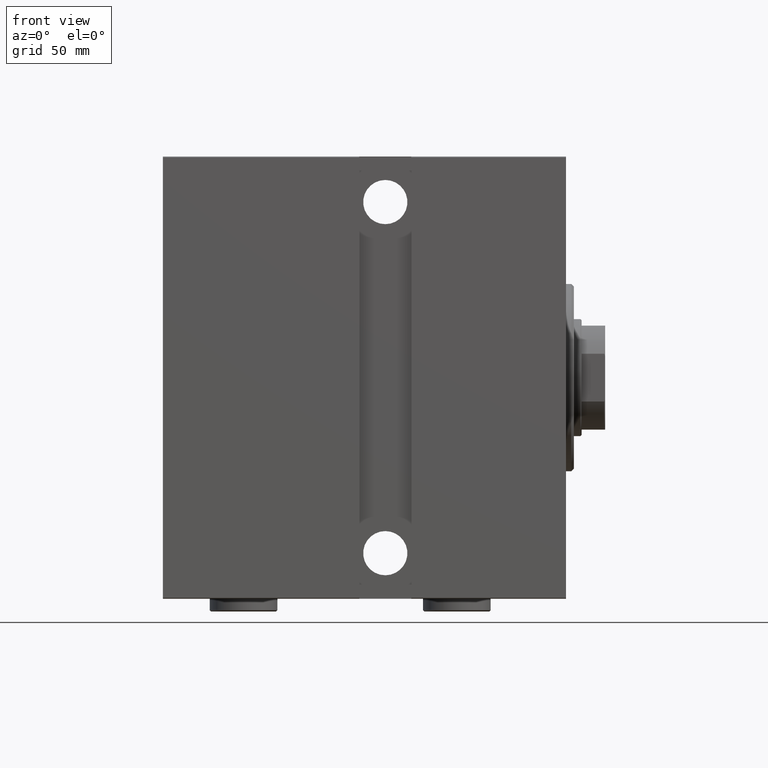
[diagram: clean part render]
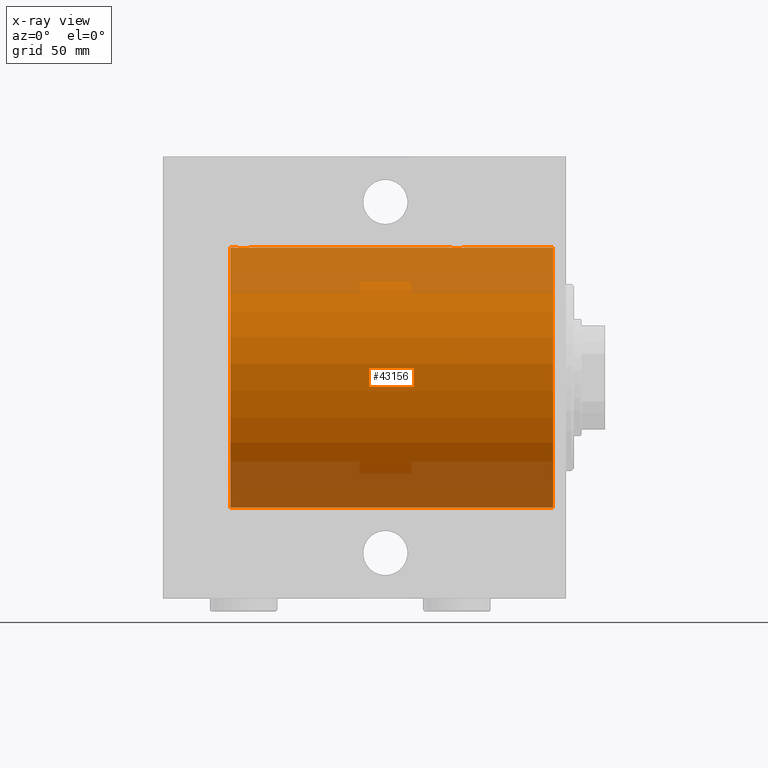
[diagram: x-ray — body ghosted, one internal face saturated and labeled with its STEP entity id]
A machine part, front view, then the same camera in x-ray: the body is ghosted and one INTERNAL B-rep face — a face not visible from any outside direction — is saturated and labeled: STEP entity #43156.
In plain terms, the highlighted cylindrical surface (partial cylindrical patch) has radius 50 mm, axis along (1, 0, -0).
Its self-contained STEP definition (entity closure, byte-faithful):
#77 = CARTESIAN_POINT ( 'NONE',  ( 125.3714460322090929, 4.032152715176913205, 49.83726562785246017 ) ) ;
#480 = DIRECTION ( 'NONE',  ( -1.000000000000000000, -0.000000000000000000, -0.000000000000000000 ) ) ;
#615 = B_SPLINE_CURVE_WITH_KNOTS ( 'NONE', 3,
 ( #23703, #37092, #30618, #19712, #13214, #37306, #26841, #6767, #43547, #20358, #33322, #23921, #16365, #77, #40847, #10302, #9305, #33830, #40072, #20232, #30268, #23361, #36967, #3076, #2639, #33619, #22921, #26492, #43179, #12859, #13307, #5980, #16225, #19803 ),
 .UNSPECIFIED., .F., .F.,
 ( 4, 2, 2, 2, 2, 2, 2, 2, 2, 2, 2, 2, 2, 2, 2, 2, 4 ),
 ( 3.802687406800181399E-18, 0.0008308394705804751862, 0.001661678941160946686, 0.002492518411741417861, 0.003323357882321889469, 0.004154197352902361078, 0.004985036823482831385, 0.005815876294063304294, 0.006646715764643776336, 0.007477555235224249246, 0.008308394705804722155, 0.009139234176385194197, 0.009970073646965664504, 0.01080091311754613655, 0.01163175258812660685, 0.01246259205870707890, 0.01329343152928754920 ),
 .UNSPECIFIED. ) ;
#746 = CARTESIAN_POINT ( 'NONE',  ( 37.75000000000000711, -2.480770331693776875E-23, 50.00000000000000000 ) ) ;
#1278 = EDGE_CURVE ( 'NONE', #13156, #32681, #30558, .T. ) ;
#1874 = CARTESIAN_POINT ( 'NONE',  ( 39.86883186234136645, 3.687449343139588720, 49.86408027804462506 ) ) ;
#2527 = CARTESIAN_POINT ( 'NONE',  ( 44.59471155064524339, 3.377583483857613089, 49.88603192934380104 ) ) ;
#2560 = DIRECTION ( 'NONE',  ( -1.000000000000000000, 0.000000000000000000, 0.000000000000000000 ) ) ;
#2608 = DIRECTION ( 'NONE',  ( 0.000000000000000000, 0.000000000000000000, 1.000000000000000000 ) ) ;
#2639 = CARTESIAN_POINT ( 'NONE',  ( 121.1937868506139182, 3.204122793140518066, 49.89762612798256214 ) ) ;
#3076 = CARTESIAN_POINT ( 'NONE',  ( 121.4084213949490731, 3.379775232620383818, 49.88587880363004956 ) ) ;
#3232 = DIRECTION ( 'NONE',  ( -1.000000000000000000, -0.000000000000000000, -0.000000000000000000 ) ) ;
#3325 = CARTESIAN_POINT ( 'NONE',  ( 129.0000000000000000, 0.000000000000000000, 50.00000000000000000 ) ) ;
#3652 = LINE ( 'NONE', #24164, #31855 ) ;
#5008 = CARTESIAN_POINT ( 'NONE',  ( 40.89727867996201383, 4.113850194901004897, 49.83050476025722020 ) ) ;
#5656 = CARTESIAN_POINT ( 'NONE',  ( 37.77780584836772704, 0.5592384970569924674, 49.99761483193761080 ) ) ;
#5869 = CARTESIAN_POINT ( 'NONE',  ( 45.20063781226177468, 2.809844036175775273, 49.92137121633495411 ) ) ;
#5980 = CARTESIAN_POINT ( 'NONE',  ( 119.7778058483677057, 0.5592384970569901359, 49.99761483193760370 ) ) ;
#6153 = ORIENTED_EDGE ( 'NONE', *, *, #27136, .T. ) ;
#6351 = CIRCLE ( 'NONE', #42632, 50.00000000000000000 ) ;
#6364 = CARTESIAN_POINT ( 'NONE',  ( 128.2499999999999716, 3.913250439338632581E-15, 50.00000000000000000 ) ) ;
#6380 = AXIS2_PLACEMENT_3D ( 'NONE', #32450, #2560, #23290 ) ;
#6551 = CARTESIAN_POINT ( 'NONE',  ( 5.000000000000004441, 6.123233995736766085E-15, -50.00000000000000000 ) ) ;
#6767 = CARTESIAN_POINT ( 'NONE',  ( 127.3801048630076309, 2.591239970584156893, 49.93334495304385712 ) ) ;
#8271 = VECTOR ( 'NONE', #31912, 1000.000000000000000 ) ;
#8347 = CARTESIAN_POINT ( 'NONE',  ( 37.96690704685525475, 1.369053668635229704, 49.98191709664470750 ) ) ;
#8478 = DIRECTION ( 'NONE',  ( -1.000000000000000000, 0.000000000000000000, 0.000000000000000000 ) ) ;
#8980 = CARTESIAN_POINT ( 'NONE',  ( 46.24999999999999289, 0.2809437491437558609, 50.00000000000000711 ) ) ;
#9305 = CARTESIAN_POINT ( 'NONE',  ( 124.2788714507149450, 4.249899732140173469, 49.81905611587623639 ) ) ;
#10302 = CARTESIAN_POINT ( 'NONE',  ( 124.5547403769281090, 4.222915468341948753, 49.82138079020266730 ) ) ;
#11156 = LINE ( 'NONE', #31464, #8271 ) ;
#11672 = CARTESIAN_POINT ( 'NONE',  ( 41.72419313215250014, 4.250099715408711454, 49.81903905555740408 ) ) ;
#11883 = CARTESIAN_POINT ( 'NONE',  ( 46.03257388568555086, 1.370567417712646119, 49.98187507657573292 ) ) ;
#12088 = CARTESIAN_POINT ( 'NONE',  ( 37.88652769648385288, 1.104090919659207914, 49.98855088738324071 ) ) ;
#12305 = CARTESIAN_POINT ( 'NONE',  ( 38.18018918912861892, 1.883929957684041812, 49.96515938649660171 ) ) ;
#12345 = CARTESIAN_POINT ( 'NONE',  ( 129.0000000000000000, 6.123233995736766085E-15, -50.00000000000000000 ) ) ;
#12630 = VERTEX_POINT ( 'NONE', #746 ) ;
#12859 = CARTESIAN_POINT ( 'NONE',  ( 119.9669070468552405, 1.369053668635230370, 49.98191709664470750 ) ) ;
#13156 = VERTEX_POINT ( 'NONE', #3325 ) ;
#13214 = CARTESIAN_POINT ( 'NONE',  ( 128.0325738856855082, 1.370567417712642122, 49.98187507657574713 ) ) ;
#13307 = CARTESIAN_POINT ( 'NONE',  ( 119.8865276964838529, 1.104090919659205250, 49.98855088738324071 ) ) ;
#15077 = EDGE_CURVE ( 'NONE', #12630, #23342, #28998, .T. ) ;
#15456 = CARTESIAN_POINT ( 'NONE',  ( 42.55474037692811606, 4.222915468341956746, 49.82138079020266019 ) ) ;
#16225 = CARTESIAN_POINT ( 'NONE',  ( 119.7499999999999858, 0.2774387832574399249, 49.99999999999998579 ) ) ;
#16365 = CARTESIAN_POINT ( 'NONE',  ( 125.8828700758230212, 3.820198949706802960, 49.85396053238191172 ) ) ;
#18453 = EDGE_CURVE ( 'NONE', #39790, #27788, #11156, .T. ) ;
#18725 = CARTESIAN_POINT ( 'NONE',  ( 5.000000000000004441, 0.000000000000000000, 0.000000000000000000 ) ) ;
#18813 = CARTESIAN_POINT ( 'NONE',  ( 42.27887145071498054, 4.249899732140181463, 49.81905611587624350 ) ) ;
#19025 = CARTESIAN_POINT ( 'NONE',  ( 43.37144603220910000, 4.032152715176926527, 49.83726562785245306 ) ) ;
#19712 = CARTESIAN_POINT ( 'NONE',  ( 128.1143643294342382, 1.100566060006320956, 49.98862465889504136 ) ) ;
#19803 = CARTESIAN_POINT ( 'NONE',  ( 119.7500000000000000, -2.480336458195905319E-23, 50.00000000000000000 ) ) ;
#20182 = DIRECTION ( 'NONE',  ( 0.000000000000000000, 0.000000000000000000, 1.000000000000000000 ) ) ;
#20232 = CARTESIAN_POINT ( 'NONE',  ( 122.8972786799620138, 4.113850194900997792, 49.83050476025721309 ) ) ;
#20358 = CARTESIAN_POINT ( 'NONE',  ( 126.8086300572496299, 3.201703158387168457, 49.89777173894965046 ) ) ;
#20613 = CYLINDRICAL_SURFACE ( 'NONE', #23402, 50.00000000000000000 ) ;
#20996 = VERTEX_POINT ( 'NONE', #6364 ) ;
#21943 = CARTESIAN_POINT ( 'NONE',  ( 45.81916120116850522, 1.885236035486732353, 49.96510958966688065 ) ) ;
#22152 = CARTESIAN_POINT ( 'NONE',  ( 46.25000000000000000, 3.663389736015513070E-16, 50.00000000000000000 ) ) ;
#22593 = CARTESIAN_POINT ( 'NONE',  ( 38.79689007339680984, 2.807369215369739379, 49.92152015083319583 ) ) ;
#22817 = CARTESIAN_POINT ( 'NONE',  ( 46.22241690005311909, 0.5571669497596906107, 49.99763400332482632 ) ) ;
#22921 = CARTESIAN_POINT ( 'NONE',  ( 120.6210426914386034, 2.592639214541030412, 49.93326838038161242 ) ) ;
#23271 = VECTOR ( 'NONE', #480, 1000.000000000000000 ) ;
#23290 = DIRECTION ( 'NONE',  ( 0.000000000000000000, 0.000000000000000000, 1.000000000000000000 ) ) ;
#23342 = VERTEX_POINT ( 'NONE', #36022 ) ;
#23361 = CARTESIAN_POINT ( 'NONE',  ( 122.1175560640430007, 3.820534283589329227, 49.85393595968220382 ) ) ;
#23402 = AXIS2_PLACEMENT_3D ( 'NONE', #34434, #3232, #20182 ) ;
#23703 = CARTESIAN_POINT ( 'NONE',  ( 128.2499999999999716, 3.913250439338632581E-15, 50.00000000000000000 ) ) ;
#23884 = CARTESIAN_POINT ( 'NONE',  ( 129.0000000000000000, 0.000000000000000000, 50.00000000000000000 ) ) ;
#23921 = CARTESIAN_POINT ( 'NONE',  ( 126.1300936179966214, 3.688265093516099657, 49.86402463145034858 ) ) ;
#24164 = CARTESIAN_POINT ( 'NONE',  ( 129.0000000000000000, 6.123233995736766085E-15, -50.00000000000000000 ) ) ;
#24616 = DIRECTION ( 'NONE',  ( -1.000000000000000000, -0.000000000000000000, -0.000000000000000000 ) ) ;
#24805 = LINE ( 'NONE', #23884, #23271 ) ;
#25014 = EDGE_CURVE ( 'NONE', #32681, #31897, #3652, .T. ) ;
#25307 = CARTESIAN_POINT ( 'NONE',  ( 41.44247689697309056, 4.222431257622151435, 49.82142152089561904 ) ) ;
#25524 = CARTESIAN_POINT ( 'NONE',  ( 44.80863005724962989, 3.201703158387179116, 49.89777173894965756 ) ) ;
#25667 = DIRECTION ( 'NONE',  ( -1.000000000000000000, -0.000000000000000000, -0.000000000000000000 ) ) ;
#25726 = CARTESIAN_POINT ( 'NONE',  ( 37.75000000000002132, 0.2774387832574390922, 50.00000000000001421 ) ) ;
#25942 = CARTESIAN_POINT ( 'NONE',  ( 39.19378685061396084, 3.204122793140522507, 49.89762612798256214 ) ) ;
#26160 = CARTESIAN_POINT ( 'NONE',  ( 43.10346211278672257, 4.113772393339279354, 49.83051149236716526 ) ) ;
#26492 = CARTESIAN_POINT ( 'NONE',  ( 120.3132776566072693, 2.132418568805243719, 49.95503838744804881 ) ) ;
#26841 = CARTESIAN_POINT ( 'NONE',  ( 127.6885838399500983, 2.129315083715782375, 49.95517470752237443 ) ) ;
#26885 = ORIENTED_EDGE ( 'NONE', *, *, #34515, .T. ) ;
#27083 = FACE_OUTER_BOUND ( 'NONE', #29303, .T. ) ;
#27136 = EDGE_CURVE ( 'NONE', #27788, #12630, #43376, .T. ) ;
#27788 = VERTEX_POINT ( 'NONE', #28432 ) ;
#28432 = CARTESIAN_POINT ( 'NONE',  ( 46.25000000000000000, 3.663389736015513070E-16, 50.00000000000000000 ) ) ;
#28640 = CARTESIAN_POINT ( 'NONE',  ( 44.13009361799668540, 3.688265093516102766, 49.86402463145035568 ) ) ;
#28998 = LINE ( 'NONE', #42584, #37312 ) ;
#29070 = CARTESIAN_POINT ( 'NONE',  ( 39.40842139494905894, 3.379775232620389147, 49.88587880363004956 ) ) ;
#29303 = EDGE_LOOP ( 'NONE', ( #33900, #34446, #26885, #40872, #42838, #6153, #29632, #31029 ) ) ;
#29632 = ORIENTED_EDGE ( 'NONE', *, *, #15077, .T. ) ;
#30268 = CARTESIAN_POINT ( 'NONE',  ( 122.6322789095959394, 4.033536463572221287, 49.83715477915254155 ) ) ;
#30558 = CIRCLE ( 'NONE', #6380, 50.00000000000000000 ) ;
#30618 = CARTESIAN_POINT ( 'NONE',  ( 128.2224169000531049, 0.5571669497596892784, 49.99763400332482632 ) ) ;
#31029 = ORIENTED_EDGE ( 'NONE', *, *, #39927, .T. ) ;
#31464 = CARTESIAN_POINT ( 'NONE',  ( 129.0000000000000000, 0.000000000000000000, 50.00000000000000000 ) ) ;
#31855 = VECTOR ( 'NONE', #24616, 1000.000000000000000 ) ;
#31897 = VERTEX_POINT ( 'NONE', #6551 ) ;
#31912 = DIRECTION ( 'NONE',  ( -1.000000000000000000, -0.000000000000000000, -0.000000000000000000 ) ) ;
#32417 = CARTESIAN_POINT ( 'NONE',  ( 40.63227890959592514, 4.033536463572223951, 49.83715477915254155 ) ) ;
#32450 = CARTESIAN_POINT ( 'NONE',  ( 129.0000000000000000, 0.000000000000000000, 0.000000000000000000 ) ) ;
#32681 = VERTEX_POINT ( 'NONE', #12345 ) ;
#33322 = CARTESIAN_POINT ( 'NONE',  ( 126.5947115506452292, 3.377583483857613533, 49.88603192934380104 ) ) ;
#33619 = CARTESIAN_POINT ( 'NONE',  ( 120.7968900733967814, 2.807369215369734494, 49.92152015083319583 ) ) ;
#33830 = CARTESIAN_POINT ( 'NONE',  ( 123.7241931321524930, 4.250099715408703460, 49.81903905555740408 ) ) ;
#33900 = ORIENTED_EDGE ( 'NONE', *, *, #25014, .F. ) ;
#33904 = CARTESIAN_POINT ( 'NONE',  ( 119.7500000000000000, -2.480336458195905319E-23, 50.00000000000000000 ) ) ;
#34434 = CARTESIAN_POINT ( 'NONE',  ( 129.0000000000000000, 0.000000000000000000, 0.000000000000000000 ) ) ;
#34446 = ORIENTED_EDGE ( 'NONE', *, *, #1278, .F. ) ;
#34515 = EDGE_CURVE ( 'NONE', #13156, #20996, #24805, .T. ) ;
#35754 = CARTESIAN_POINT ( 'NONE',  ( 45.38010486300764512, 2.591239970584167107, 49.93334495304385712 ) ) ;
#36022 = CARTESIAN_POINT ( 'NONE',  ( 5.000000000000004441, 0.000000000000000000, 50.00000000000000000 ) ) ;
#36194 = CARTESIAN_POINT ( 'NONE',  ( 45.68858383995015515, 2.129315083715793477, 49.95517470752238864 ) ) ;
#36967 = CARTESIAN_POINT ( 'NONE',  ( 121.8688318623413664, 3.687449343139583835, 49.86408027804463217 ) ) ;
#37092 = CARTESIAN_POINT ( 'NONE',  ( 128.2500000000000000, 0.2809437491437550838, 50.00000000000002132 ) ) ;
#37306 = CARTESIAN_POINT ( 'NONE',  ( 127.8191612011684839, 1.885236035486727912, 49.96510958966689486 ) ) ;
#37312 = VECTOR ( 'NONE', #25667, 1000.000000000000000 ) ;
#38877 = CARTESIAN_POINT ( 'NONE',  ( 38.31327765660727636, 2.132418568805245940, 49.95503838744803460 ) ) ;
#39303 = CARTESIAN_POINT ( 'NONE',  ( 37.75000000000000711, -2.480770331693776875E-23, 50.00000000000000000 ) ) ;
#39513 = CARTESIAN_POINT ( 'NONE',  ( 38.62104269143859625, 2.592639214541033965, 49.93326838038159821 ) ) ;
#39790 = VERTEX_POINT ( 'NONE', #33904 ) ;
#39927 = EDGE_CURVE ( 'NONE', #23342, #31897, #6351, .T. ) ;
#40072 = CARTESIAN_POINT ( 'NONE',  ( 123.4424768969730764, 4.222431257622142553, 49.82142152089561904 ) ) ;
#40847 = CARTESIAN_POINT ( 'NONE',  ( 125.1034621127866728, 4.113772393339271360, 49.83051149236715816 ) ) ;
#40872 = ORIENTED_EDGE ( 'NONE', *, *, #42715, .T. ) ;
#42219 = CARTESIAN_POINT ( 'NONE',  ( 43.88287007582302834, 3.820198949706817171, 49.85396053238191172 ) ) ;
#42584 = CARTESIAN_POINT ( 'NONE',  ( 129.0000000000000000, 0.000000000000000000, 50.00000000000000000 ) ) ;
#42632 = AXIS2_PLACEMENT_3D ( 'NONE', #18725, #8478, #2608 ) ;
#42715 = EDGE_CURVE ( 'NONE', #20996, #39790, #615, .T. ) ;
#42838 = ORIENTED_EDGE ( 'NONE', *, *, #18453, .T. ) ;
#42854 = CARTESIAN_POINT ( 'NONE',  ( 40.11755606404297936, 3.820534283589331004, 49.85393595968220382 ) ) ;
#43076 = CARTESIAN_POINT ( 'NONE',  ( 46.11436432943420982, 1.100566060006322511, 49.98862465889502005 ) ) ;
#43156 = ADVANCED_FACE ( 'NONE', ( #27083 ), #20613, .F. ) ;
#43179 = CARTESIAN_POINT ( 'NONE',  ( 120.1801891891285976, 1.883929957684040701, 49.96515938649660882 ) ) ;
#43376 = B_SPLINE_CURVE_WITH_KNOTS ( 'NONE', 3,
 ( #22152, #8980, #22817, #43076, #11883, #21943, #36194, #35754, #5869, #25524, #2527, #28640, #42219, #19025, #26160, #15456, #18813, #11672, #25307, #5008, #32417, #42854, #1874, #29070, #25942, #22593, #39513, #38877, #12305, #8347, #12088, #5656, #25726, #39303 ),
 .UNSPECIFIED., .F., .F.,
 ( 4, 2, 2, 2, 2, 2, 2, 2, 2, 2, 2, 2, 2, 2, 2, 2, 4 ),
 ( 1.501832065786103734E-18, 0.0008308394705804737768, 0.001661678941160946469, 0.002492518411741418728, 0.003323357882321892071, 0.004154197352902364547, 0.004985036823482836589, 0.005815876294063309498, 0.006646715764643781540, 0.007477555235224253583, 0.008308394705804725625, 0.009139234176385199401, 0.009970073646965669709, 0.01080091311754614175, 0.01163175258812661553, 0.01246259205870708757, 0.01329343152928756135 ),
 .UNSPECIFIED. ) ;
#43547 = CARTESIAN_POINT ( 'NONE',  ( 127.2006378122617605, 2.809844036175765503, 49.92137121633495411 ) ) ;